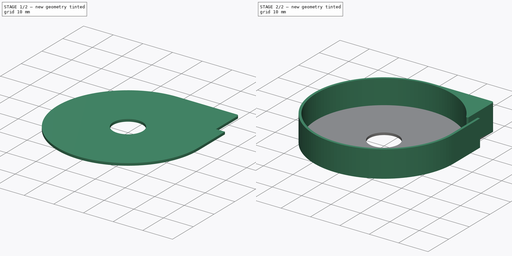
[diagram: build sequence overview — one tinted view per stage of 2, left to right]
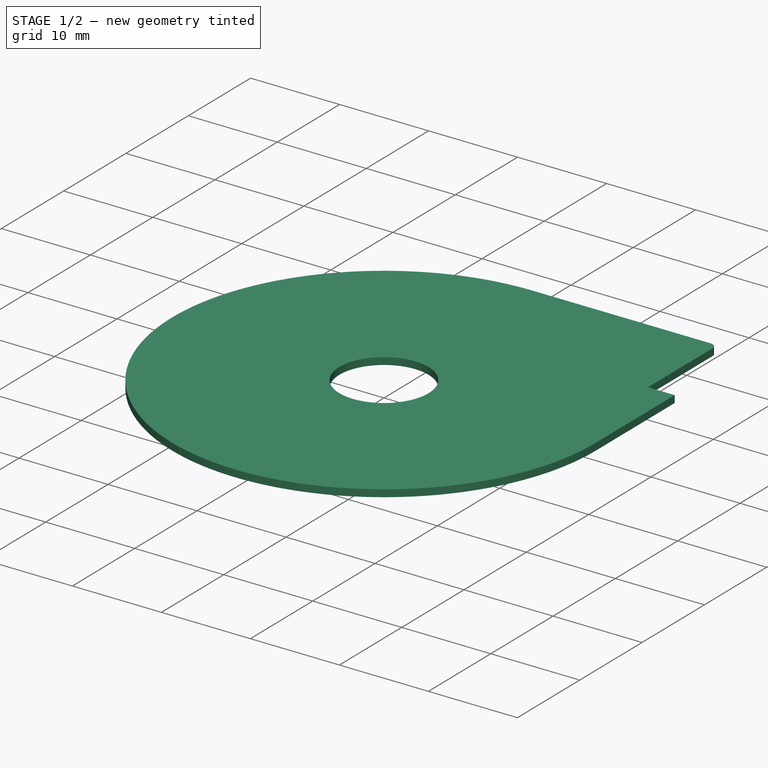
[diagram: stage 1 of 2 — iso view after this stage's code; geometry added in this stage tinted green]
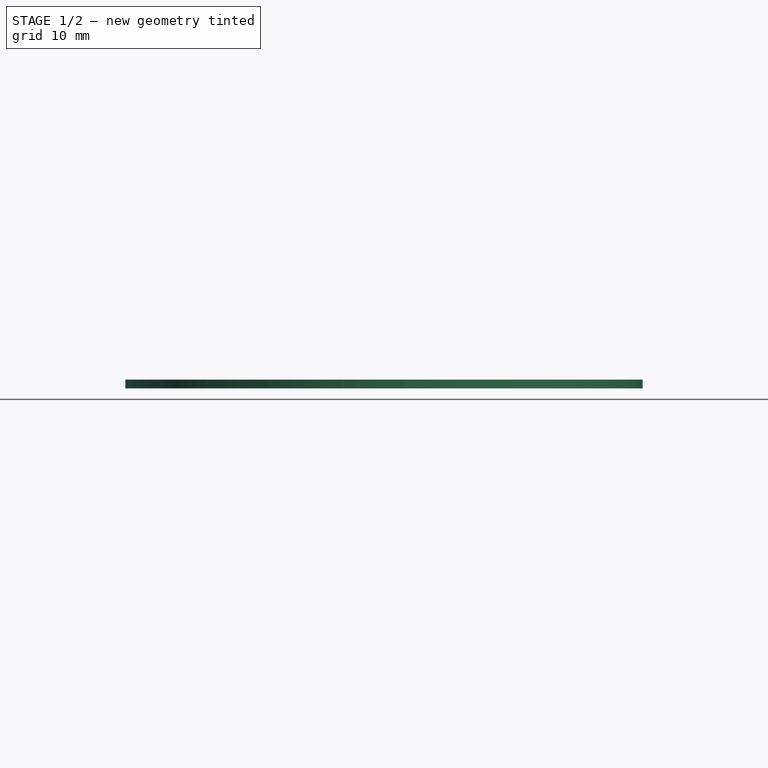
[diagram: stage 1 of 2 — front view after this stage's code; geometry added in this stage tinted green]
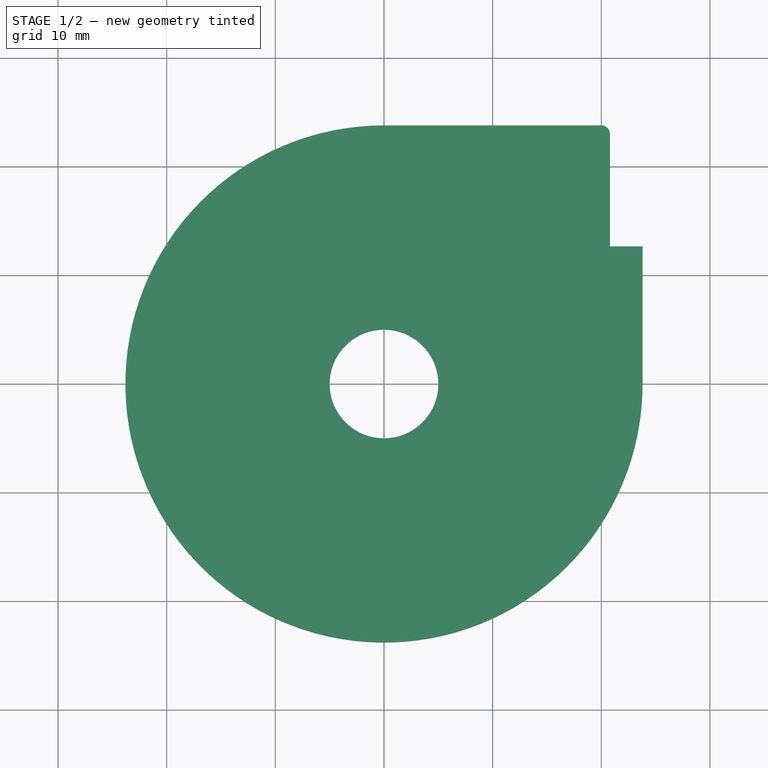
[diagram: stage 1 of 2 — top view after this stage's code; geometry added in this stage tinted green]
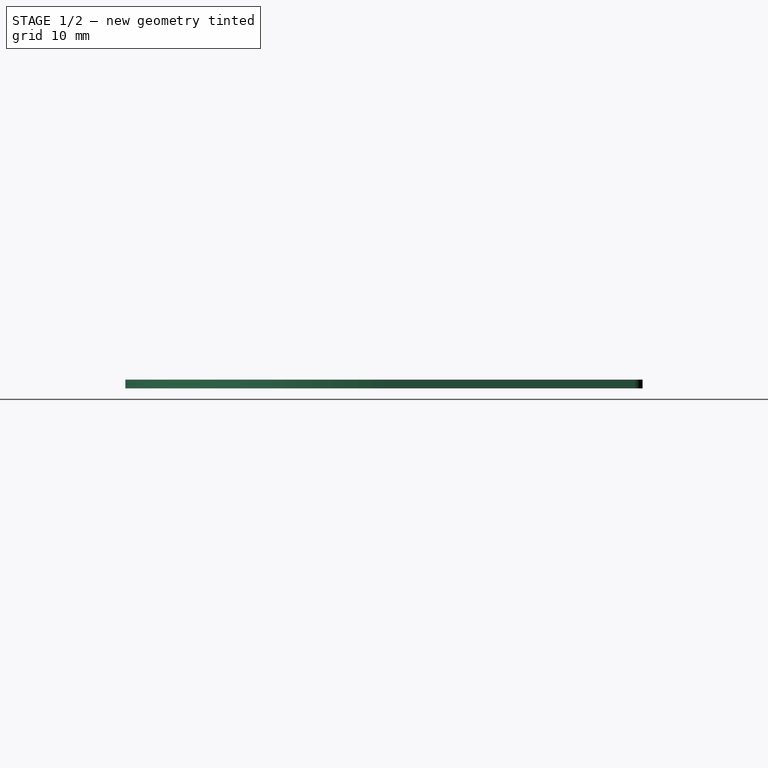
[diagram: stage 1 of 2 — right view after this stage's code; geometry added in this stage tinted green]
FCSTD DOCUMENT  (FreeCAD 1.0R39285 (Git))
Label: smd_strip_case
License: All rights reserved
LicenseURL: https://en.wikipedia.org/wiki/All_rights_reserved
objects: Sketcher::SketchObject×3, PartDesign::Pad×2, PartDesign::Body×1, Spreadsheet::Sheet×1
note: 13 computed .brp shape members not serialized (recipe doc carries the construction recipe); baked Part::Feature solids carry a one-line shape summary decoded from their .brp

FEATURE [Sketcher::SketchObject] Sketch  label="Template"
  ArcFitTolerance = 1e-06
  AttachmentSupport = -> [XY_Plane]
  FullyConstrained = true
  MakeInternals = false
  MapMode = 5
  expr: .Constraints.Ri = <<Spreadsheet>>.Diameter
  expr: Constraints[22] = <<Spreadsheet>>.Slot
  expr: Constraints[2] = .Constraints.Ri + 1.6 mm
  sketch-geometry (13):
    g0: ArcOfCircle CenterX=0 CenterY=0 CenterZ=0 NormalX=0 NormalY=0 NormalZ=1 AngleXU=0 Radius=23.8 StartAngle=1.5708 EndAngle=6.28319
    g1: ArcOfCircle CenterX=0 CenterY=0 CenterZ=0 NormalX=0 NormalY=0 NormalZ=1 AngleXU=0 Radius=23 StartAngle=0.511942 EndAngle=6.28319
    g2: LineSegment StartX=23 StartY=0 StartZ=0 EndX=23 EndY=12.663 EndZ=0
    g3: LineSegment [constr] StartX=0 StartY=0 StartZ=0 EndX=23 EndY=0 EndZ=0
    g4: LineSegment StartX=20.8 StartY=23 StartZ=0 EndX=20.8 EndY=11.463 EndZ=0
    g5: LineSegment [constr] StartX=0 StartY=0 StartZ=0 EndX=0 EndY=23.8 EndZ=0
    g6: LineSegment StartX=0 StartY=23.8 StartZ=0 EndX=20 EndY=23.8 EndZ=0
    g7: LineSegment StartX=23.8 StartY=12.663 StartZ=0 EndX=23.8 EndY=0 EndZ=0
    g8: LineSegment StartX=23.8 StartY=12.663 StartZ=0 EndX=23 EndY=12.663 EndZ=0
    g9: LineSegment StartX=23 StartY=12.663 StartZ=0 EndX=20.8 EndY=12.663 EndZ=0
    g10: ArcOfCircle CenterX=20 CenterY=23 CenterZ=0 NormalX=0 NormalY=0 NormalZ=1 AngleXU=0 Radius=0.8 StartAngle=-9e-16 EndAngle=1.5708
    g11: GeomPoint [constr] X=20.8 Y=23.8 Z=0
    g12: ArcOfCircle CenterX=20.4 CenterY=11.463 CenterZ=0 NormalX=0 NormalY=0 NormalZ=1 AngleXU=0 Radius=0.4 StartAngle=3.65353 EndAngle=6.28319
  constraints (31):
    c: Coincident(g1,g0)
    c: Diameter(g1) = 46  'Ri'
    c: Diameter(g0) = 47.6
    c: Vertical(g2)
    c: Tangent(g1,g2) = -1.5708
    c: Coincident(g3,g0)
    c: Coincident(g3,g1)
    c: PointOnObject(g0,g3)
    c: Vertical(g4)
    c: Coincident(g5,g0)
    c: Vertical(g5)
    c: Coincident(g0,g5)
    c: Tangent(g7,g0) = 1.5708
    c: Coincident(g8,g7)
    c: Coincident(g8,g2)
    c: Horizontal(g8)
    c: Coincident(g9,g2)
    c: Horizontal(g9)
    c: PointOnObject(g11,g4)
    c: PointOnObject(g11,g6)
    c: Tangent(g4,g10) = 1.5708
    c: Tangent(g6,g10) = 1.5708
    c: DistanceX(g4,g2) = 2.2
    c: Tangent(g6,g0) = 1.5708
    c: Radius(g10) = 0.8
    c: Tangent(g4,g12) = 1.5708
    c: Tangent(g12,g1) = 1.5708
    c: Radius(g12) = 0.4
    c: Coincident(g-1,g0)  '__ANCHOR__'
    c: PointOnObject(g9,g4)
    c: DistanceY(g4,g9) = 1.2
FEATURE [Sketcher::SketchObject] Sketch001
  ArcFitTolerance = 1e-06
  AttachmentSupport = -> [XY_Plane]
  ExternalGeometry = -> [Sketch]
  FullyConstrained = true
  MakeInternals = false
  MapMode = 5
  sketch-geometry (7):
    g0: ArcOfCircle CenterX=-1e-15 CenterY=1.2e-15 CenterZ=0 NormalX=0 NormalY=0 NormalZ=1 AngleXU=0 Radius=23.8 StartAngle=1.5708 EndAngle=6.28319
    g1: ArcOfCircle CenterX=20 CenterY=23 CenterZ=0 NormalX=0 NormalY=0 NormalZ=1 AngleXU=0 Radius=0.8 StartAngle=-9e-16 EndAngle=1.5708
    g2: LineSegment StartX=-7.922e-13 StartY=23.8 StartZ=0 EndX=20 EndY=23.8 EndZ=0
    g3: LineSegment StartX=20.8 StartY=23 StartZ=0 EndX=20.8 EndY=12.663 EndZ=0
    g4: LineSegment StartX=20.8 StartY=12.663 StartZ=0 EndX=23.8 EndY=12.663 EndZ=0
    g5: LineSegment StartX=23.8 StartY=12.663 StartZ=0 EndX=23.8 EndY=-3.1548e-12 EndZ=0
    g6: Circle CenterX=-1e-15 CenterY=1.2e-15 CenterZ=0 NormalX=0 NormalY=0 NormalZ=1 AngleXU=0 Radius=5
  constraints (16):
    c: Equal(g0,g-3)
    c: Coincident(g0,g-3)
    c: Coincident(g0,g-6)
    c: Equal(g1,g-4)
    c: Coincident(g1,g-4)
    c: Coincident(g1,g-4)
    c: Coincident(g2,g0)
    c: Coincident(g2,g1)
    c: Coincident(g3,g1)
    c: Coincident(g3,g-5)
    c: Coincident(g4,g3)
    c: Coincident(g4,g-6)
    c: Coincident(g5,g4)
    c: Coincident(g5,g0)
    c: Coincident(g0,g6)
    c: Diameter(g6) = 10
FEATURE [PartDesign::Pad] Pad
  Direction = (0,0,1)
  Length = 0.8
  Length2 = 10
  Profile = -> Sketch001
  ReferenceAxis = -> Sketch001 [N_Axis]
  Refine = true
  Suppressed = false
  Type = 0
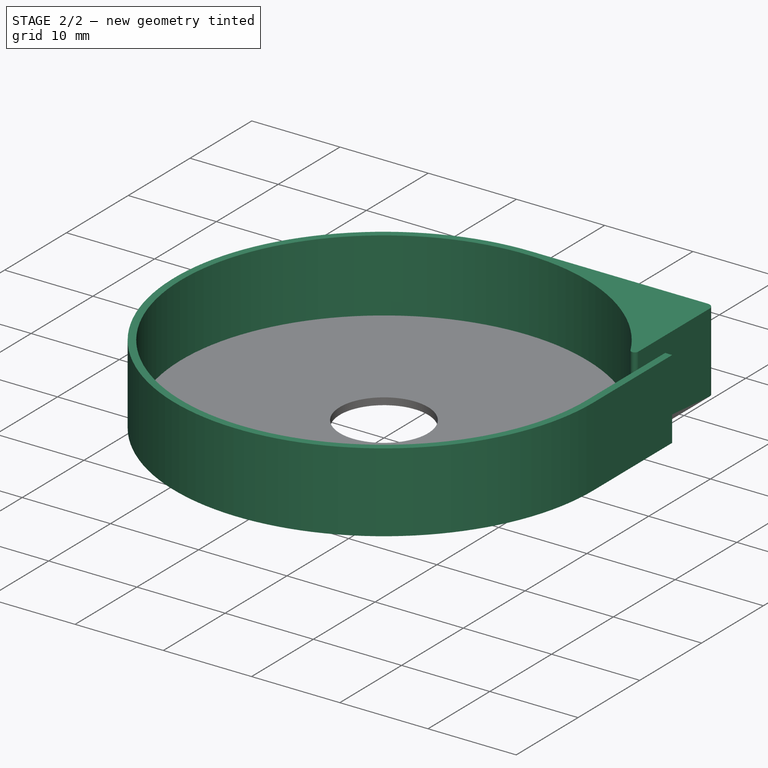
[diagram: stage 2 of 2 — iso view after this stage's code; geometry added in this stage tinted green]
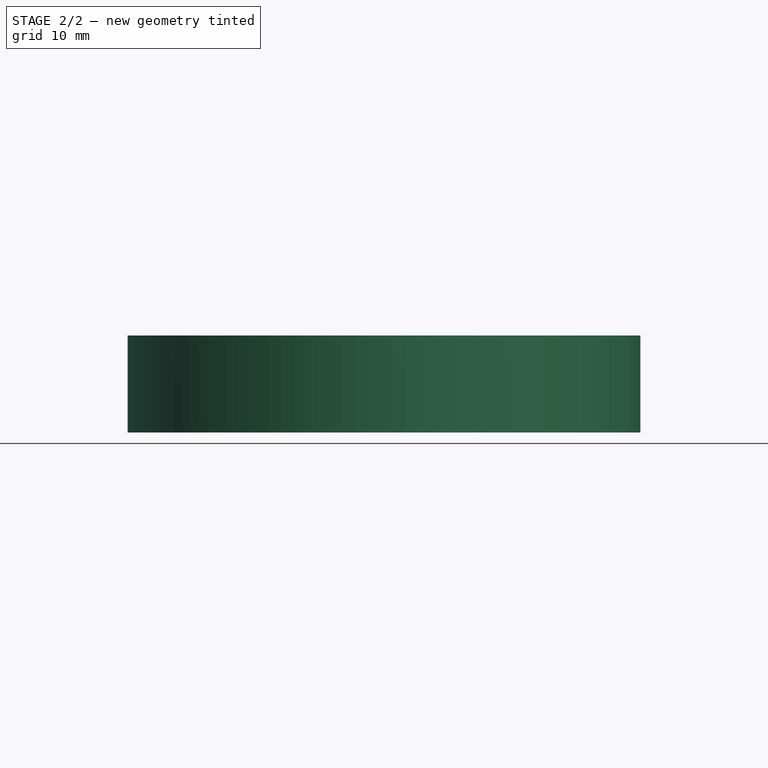
[diagram: stage 2 of 2 — front view after this stage's code; geometry added in this stage tinted green]
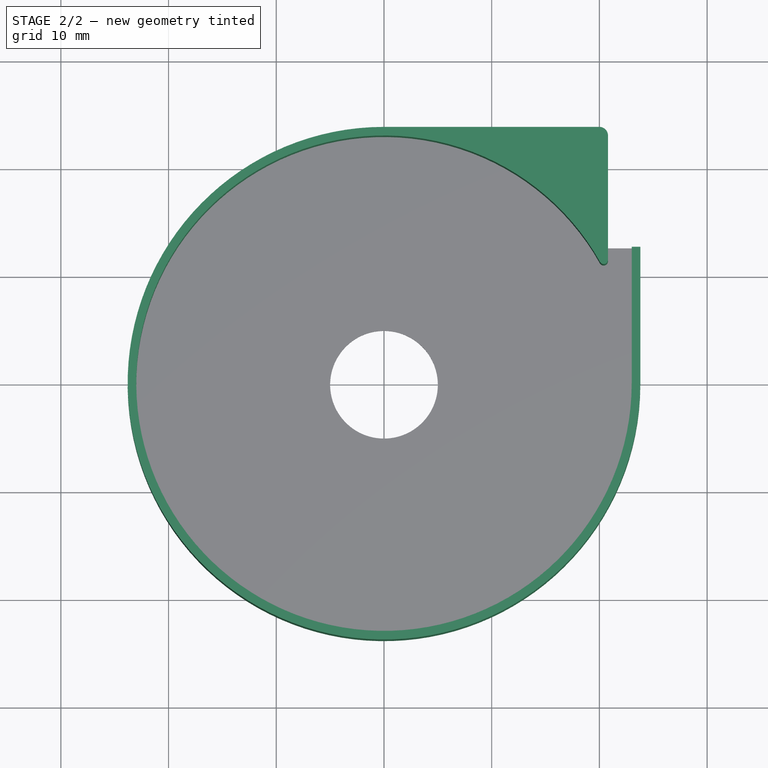
[diagram: stage 2 of 2 — top view after this stage's code; geometry added in this stage tinted green]
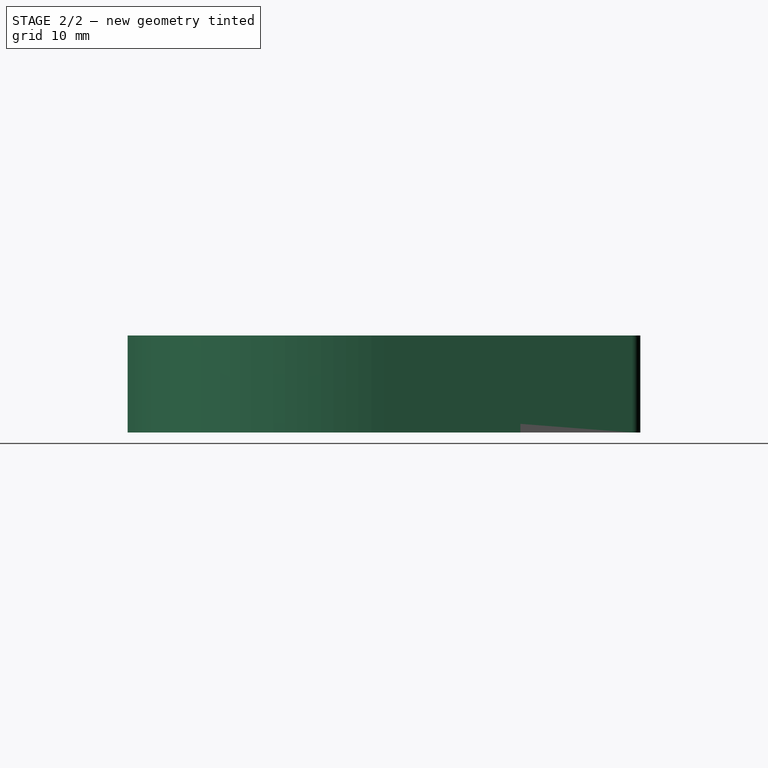
[diagram: stage 2 of 2 — right view after this stage's code; geometry added in this stage tinted green]
FEATURE [Sketcher::SketchObject] Sketch002
  ArcFitTolerance = 1e-06
  AttachmentOffset = pos=(0,0,0.8) rot=(0,0,1;0rad)
  AttachmentSupport = -> [XY_Plane]
  ExternalGeometry = -> [Sketch]
  FullyConstrained = true
  MakeInternals = false
  MapMode = 5
  Placement = pos=(0,0,0.8) rot=(0,0,1;0rad)
  expr: .AttachmentOffset.Base.z = Pad.Length
  sketch-geometry (9):
    g0: ArcOfCircle CenterX=-1.7e-15 CenterY=1.4e-15 CenterZ=0 NormalX=0 NormalY=0 NormalZ=1 AngleXU=0 Radius=23.8 StartAngle=1.5708 EndAngle=6.28319
    g1: ArcOfCircle CenterX=1.1e-15 CenterY=8.11e-14 CenterZ=0 NormalX=0 NormalY=0 NormalZ=1 AngleXU=0 Radius=23 StartAngle=0.511942 EndAngle=6.28319
    g2: ArcOfCircle CenterX=20 CenterY=23 CenterZ=0 NormalX=0 NormalY=0 NormalZ=1 AngleXU=0 Radius=0.8 StartAngle=0 EndAngle=1.5708
    g3: ArcOfCircle CenterX=20.4 CenterY=11.463 CenterZ=0 NormalX=0 NormalY=0 NormalZ=1 AngleXU=0 Radius=0.4 StartAngle=3.65353 EndAngle=6.28319
    g4: LineSegment StartX=-2e-16 StartY=23.8 StartZ=0 EndX=20 EndY=23.8 EndZ=0
    g5: LineSegment StartX=20.8 StartY=23 StartZ=0 EndX=20.8 EndY=11.463 EndZ=0
    g6: LineSegment StartX=23 StartY=12.663 StartZ=0 EndX=23 EndY=-5.3e-15 EndZ=0
    g7: LineSegment StartX=23.8 StartY=-4.5e-15 StartZ=0 EndX=23.8 EndY=12.663 EndZ=0
    g8: LineSegment StartX=23 StartY=12.663 StartZ=0 EndX=23.8 EndY=12.663 EndZ=0
  constraints (22):
    c: Equal(g0,g-4)
    c: Coincident(g0,g-4)
    c: Coincident(g0,g-4)
    c: Coincident(g1,g-6)
    c: Coincident(g1,g-5)
    c: Coincident(g2,g-3)
    c: Coincident(g2,g-3)
    c: Coincident(g3,g1)
    c: Coincident(g3,g-6)
    c: Equal(g2,g-3)
    c: Coincident(g4,g0)
    c: Coincident(g4,g2)
    c: Coincident(g2,g5)
    c: Coincident(g5,g3)
    c: Equal(g3,g-6)
    c: Coincident(g1,g6)
    c: Coincident(g6,g-7)
    c: Equal(g1,g-5)
    c: Coincident(g7,g0)
    c: Coincident(g-7,g7)
    c: Coincident(g8,g6)
    c: Coincident(g8,g7)
FEATURE [PartDesign::Pad] Pad001
  BaseFeature = -> Pad
  Direction = (0,0,1)
  Length = 8.2
  Length2 = 10
  Profile = -> Sketch002
  ReferenceAxis = -> Sketch002 [N_Axis]
  Refine = true
  Suppressed = false
  Type = 0
  expr: Length = <<Spreadsheet>>.Height
FEATURE [PartDesign::Body] Body
  AllowCompound = false
  Group = -> [Sketch,Sketch001,Pad,Sketch002,Pad001]
  Origin = -> Origin
  Tip = -> Pad001
FEATURE [Spreadsheet::Sheet] Spreadsheet
  cells = B2='Diameter; C2(Diameter)=46; B3='Height; C3(Height)=8.2; B4='Slot; C4(Slot)=2.2
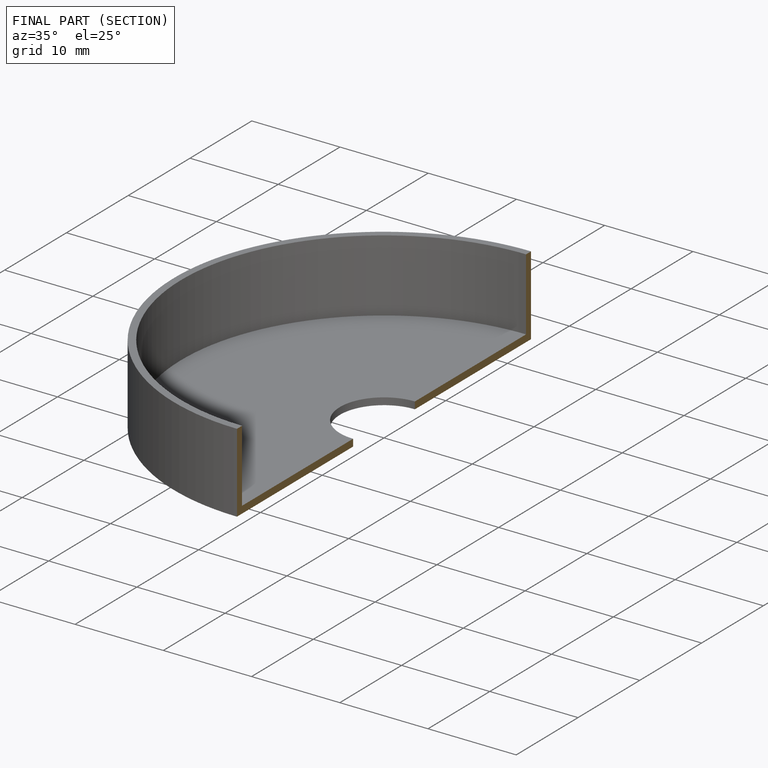
[diagram: finished part — half-section view (interior)]
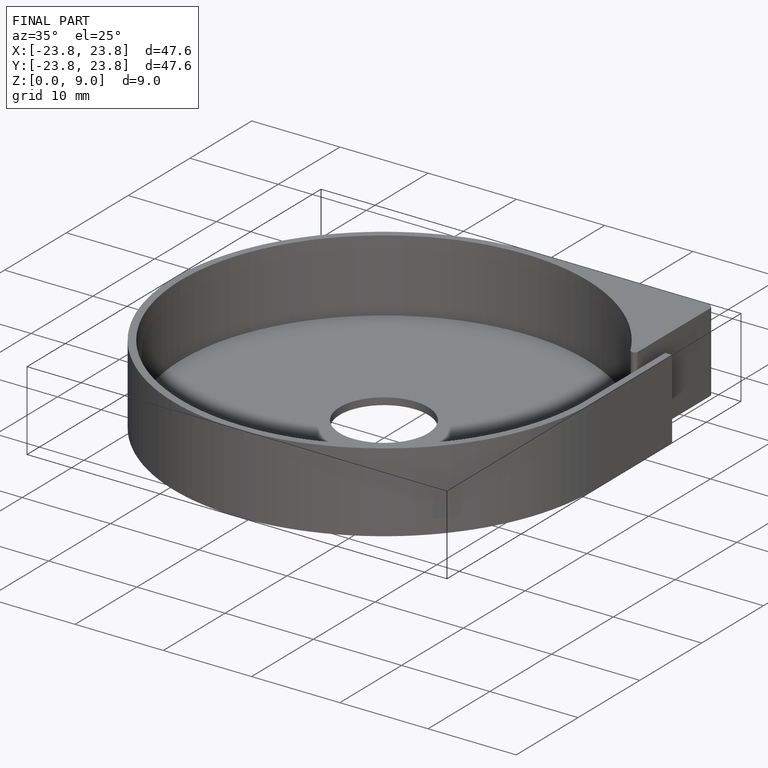
[diagram: finished part — iso view with bounding-box wireframe]
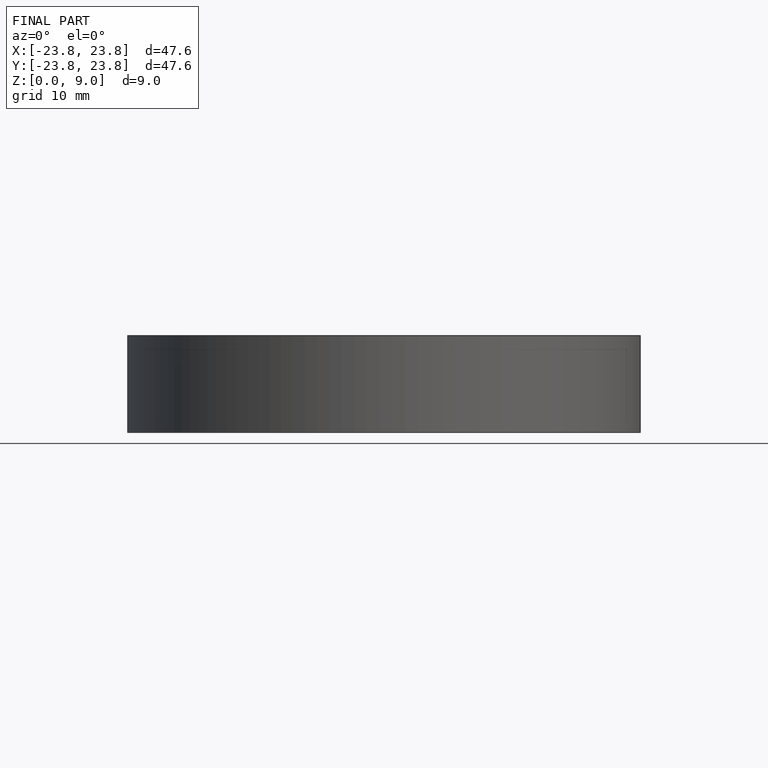
[diagram: finished part — front view with bounding-box wireframe]
